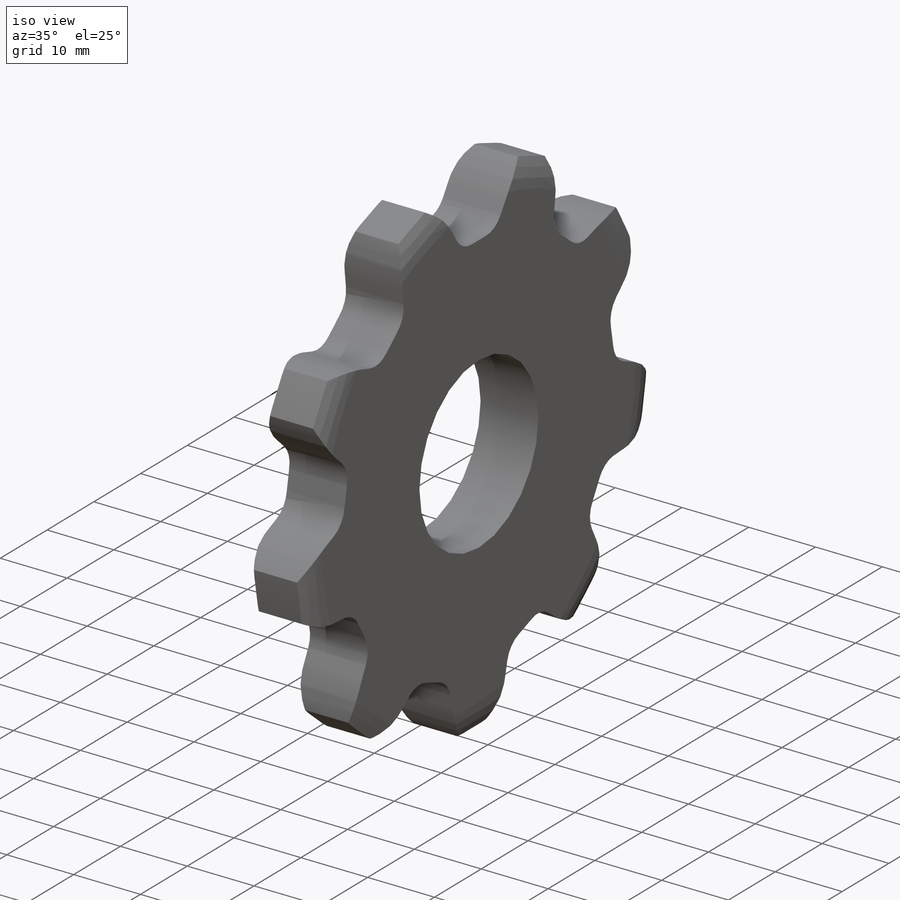
[diagram: iso view]
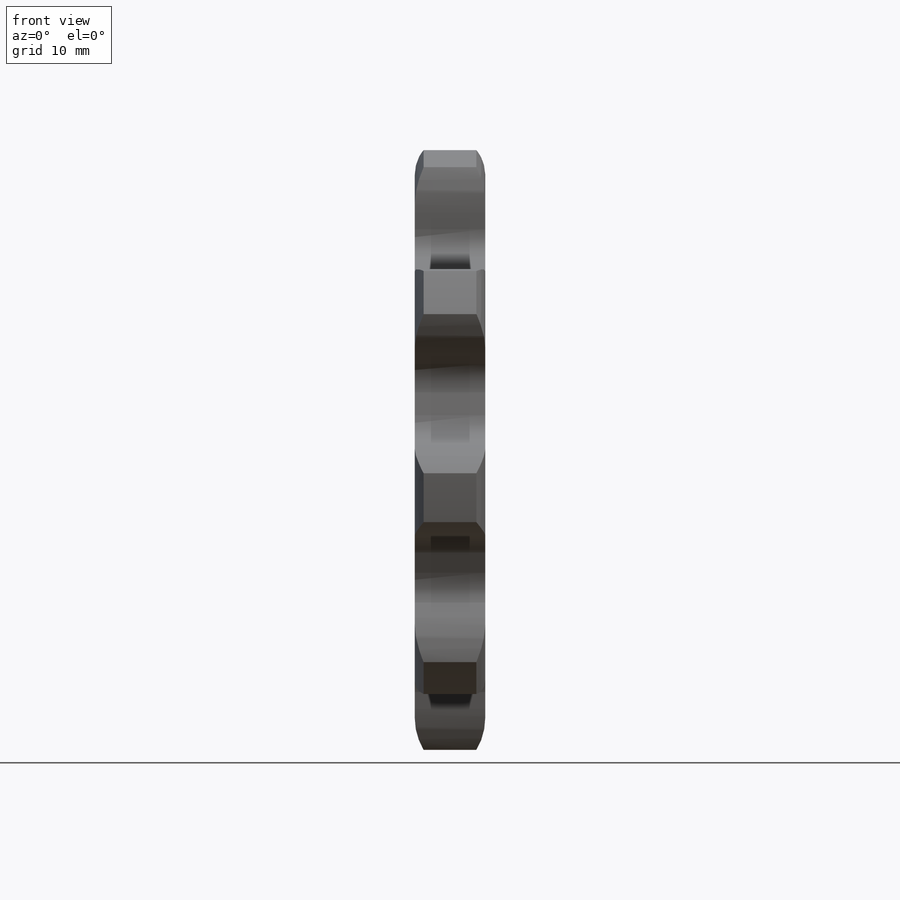
[diagram: front view]
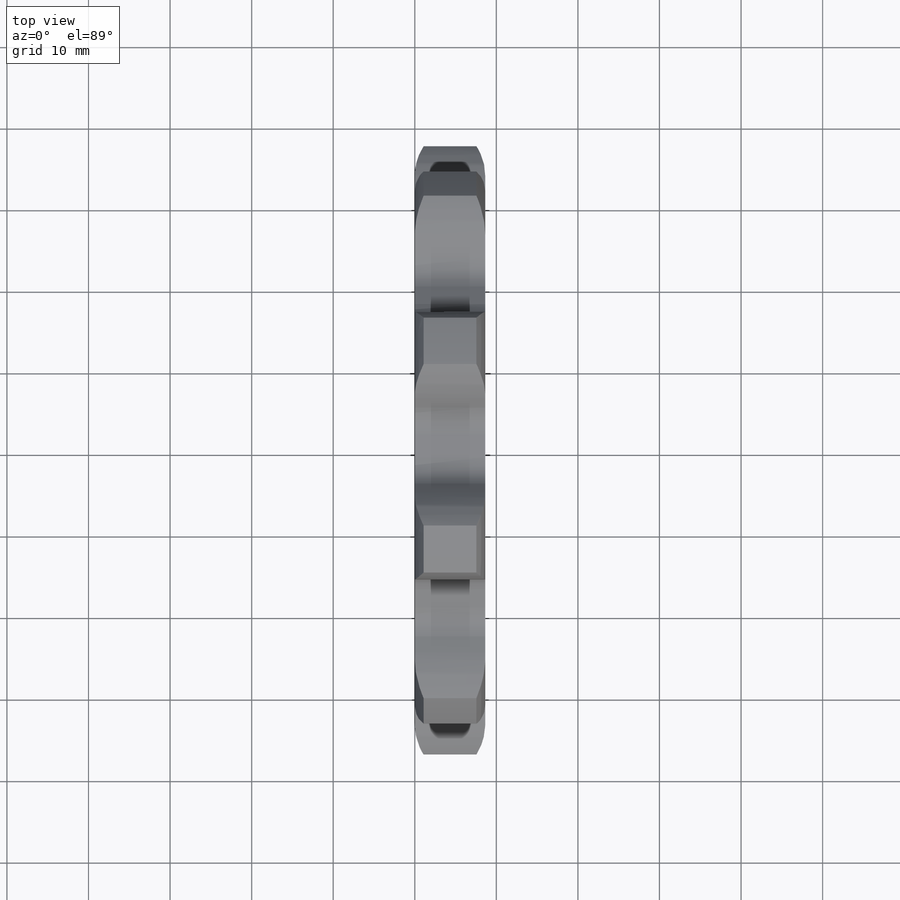
[diagram: top view]
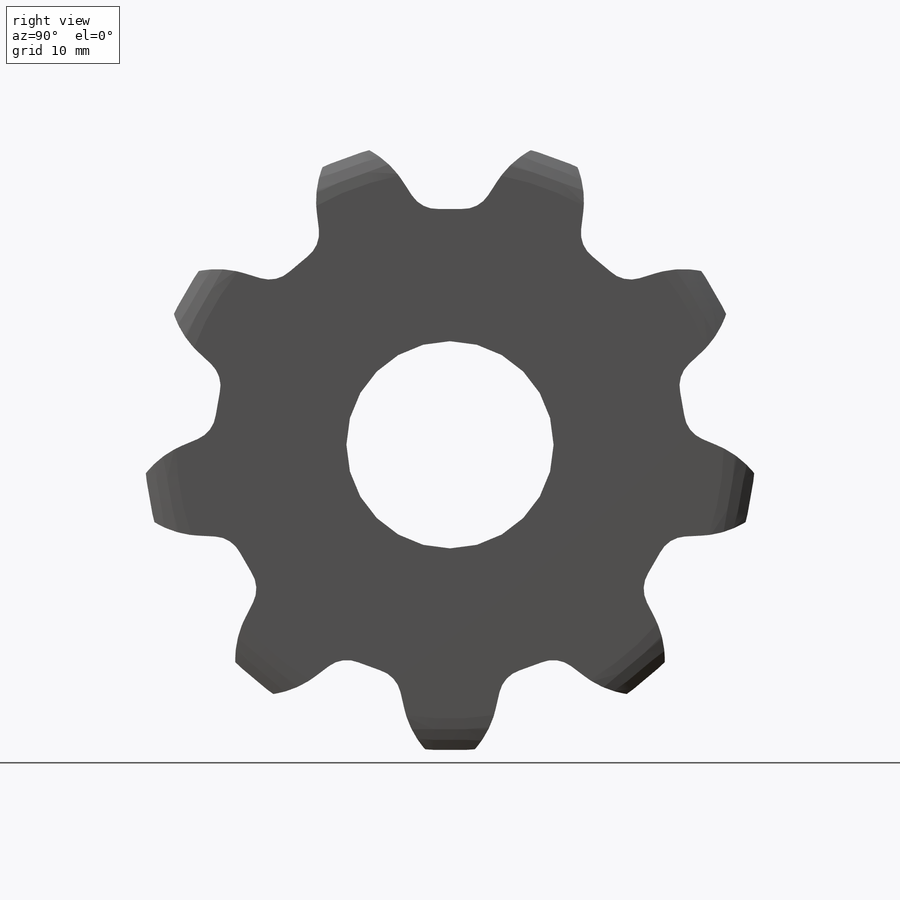
[diagram: right view]
SOLIDWORKS PART (.sldprt)
format: sldprt  version: not decoded by parser v0  size: 519,168 bytes
history: native  units: mm
features: sketch x8, plane x4, cut_extrude x3, extrude x3, pattern_circular x2, material x1, revolve x1 (+12 scaffold rows collapsed; 1 parser-record rows omitted)
feature tree (35):
  parser-record x1  (decoder bookkeeping rows leaked as tree rows — omitted from the tree; the rows remain in map.json)
  scaffold x12  (default folders/planes/origin — collapsed)
  material  "Material <not specified>"
  plane  "Plane1"
  plane  "Plane2"
  plane  "Plane3"
  sketch  "Clipboard"  dims[c1.Dr=15.875mm c1.MHD=76.2mm c1.Hub_dia=76.2mm c1.Num_teeth=7.0mm c1.D1=115.0mm c2.Num_teeth=15.0deg c2.Pitch_radius=~46.415395mm c2.Pitch=22.9616mm c2.Width=8.636mm c2.Chamfer_wid=3.175mm c2.Chamfer_dep=12.7mm c2.Overall_len=50.8mm c2.D1=115.0mm c2.Show_teeth=15.0deg c2.Thickness=8.636mm c2.OAL=~50.800051mm c2.T_dim=2.6416mm c3.D1=115.0mm c3.Ap=20.0deg c3.H=4.572mm c3.Pitch_radius=~55.219598mm]
  sketch  "BasProSke"  dims[c1.D2=~57.067268mm c1.D3=~57.067268mm c1.D1=80.0mm c1.h=15.875mm c2.D2=15.875mm c2.G1=1.0795mm c2.G2=1.0795mm c2.H2=3.8862mm c2.Diameter=~80.079479mm c2.H1=3.8862mm c2.Thickness=8.636mm c3.Diameter=~118.211596mm c3.MHD=25.4mm c3.D2=12.7mm c4.MHD=25.4mm c4.MHD_radius=12.7mm c5.MHD_radius=12.7mm]
  revolve  "Base-Revolve"  Angle=360deg
  sketch  "TooCutSke"  dims[c1.D1=50.8mm c1.D2=101.6mm c1.R=~8.015287mm c2.D1=~10.148041mm c2.E=~20.715287mm c2.F=~13.61213mm c2.R=3.6576mm c2.Dr=~50.564769mm c2.H=4.572mm c2.Pitch_radius=~55.219598mm c2.Rt=11.4808mm c2.D3=45.0mm c3.D3=30.0deg c3.Pitch_radius=~37.132316mm c3.D1=~5.323628mm c3.W=~20.884668mm c3.V=0.762mm c4.V=~7.601398mm c4.D1=107.0mm c5.D1=~11.986918deg c6.D1=6.35mm c6.Ag=66.0deg c6.Cp=~1.14808mm c7.D1=~9.360719mm c8.D1=19.0deg c9.D1=~4.754529mm c9.Ag=64.0deg c9.L=~2.066544mm c10.L=~3.44424mm c10.A=~41.666667deg c10.B=~11.777778deg c10.Angle=24.0deg]
  cut_extrude  "ToothCut"  [1 undecoded]
  pattern_circular  "TeethCuts"  Count=15 Angle=24deg Num_teeth=15
  sketch  "HubNeaOneSke"  dims[Diameter=76.2mm]
  extrude  "HubNearOne"  Depth=42.164051mm Length=42.164051mm
  sketch  "HubNeaBotSke"  dims[Diameter=76.2mm]
  extrude  "HubNearBoth"  Depth=21.082025mm Length=21.082025mm
  plane  "FarPln"  Offset=8.636mm Thickness=8.636mm
  sketch  "HubFarSke"  dims[Diameter=76.2mm]
  extrude  "HubFar"  Depth=21.082025mm Length=21.082025mm
  sketch  "BorSke"  dims[Diameter=~2.38252mm D2=35.0mm D3=12.0mm]
  cut_extrude  "Bore"  Depth=101.600102mm
  sketch  "KeySke"  dims[D1=60.0mm Offset=~1.45034mm Width=0.254mm]
  cut_extrude  "Keyway"  Depth=101.600102mm
  pattern_circular  "Keyway2"  Count=2 Angle=90deg ConfigurationName=0mm CopiedFlag=0 PartNumberID=0mm
decode coverage: 16 of 17 modeling features carry decoded parameters
note: ~ marks probable driven/reference dimensions
note: 1 parameter value undecoded
note: suppression state not decoded; provenance and decode notes live in map.json
